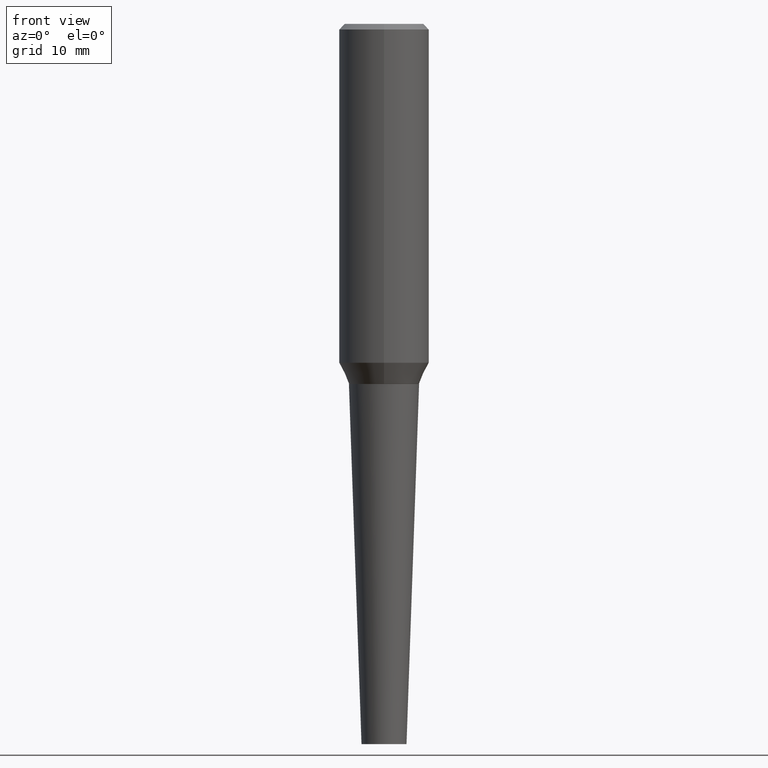
[diagram: clean part render]
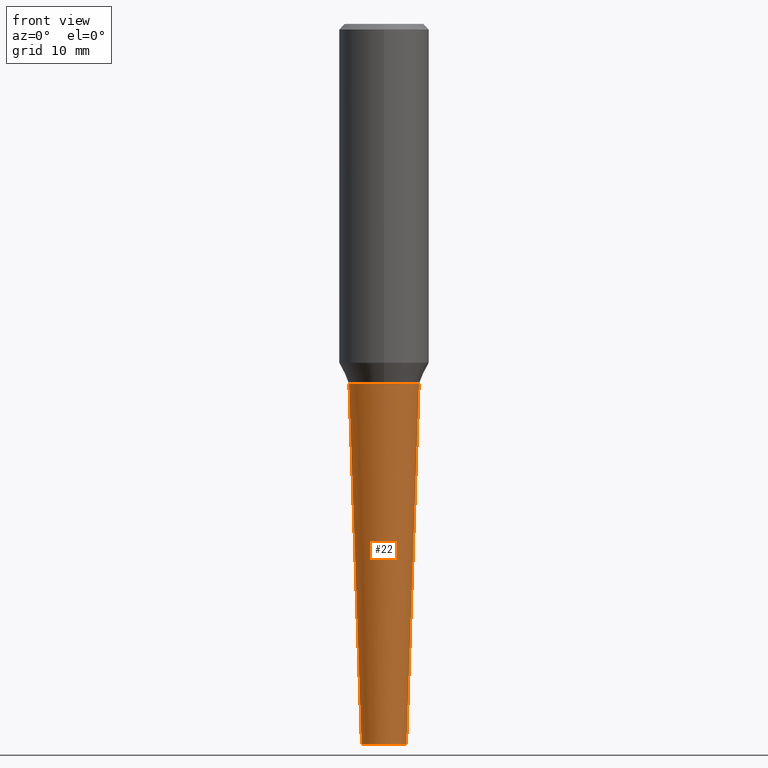
[diagram: same view with one face highlighted and labeled with its STEP entity id]
A machine part, front view. The second image highlights one B-rep face of the part: STEP entity #22.
In plain terms, the highlighted conical surface has half-angle 2 deg.
Its self-contained STEP definition (entity closure, byte-faithful):
#6 = CARTESIAN_POINT ( 'NONE',  ( 4.890937612370273194E-29, -6.982962677686291165E-15, -2.000000000000000000 ) ) ;
#15 = CONICAL_SURFACE ( 'NONE', #127, 0.1250000000000000555, 0.03490658503987938838 ) ;
#22 = ADVANCED_FACE ( 'NONE', ( #90 ), #15, .T. ) ;
#29 = LINE ( 'NONE', #102, #58 ) ;
#31 = ORIENTED_EDGE ( 'NONE', *, *, #271, .T. ) ;
#52 = VERTEX_POINT ( 'NONE', #339 ) ;
#58 = VECTOR ( 'NONE', #346, 39.37007874015748143 ) ;
#80 = DIRECTION ( 'NONE',  ( 1.000000000000000000, -6.982962677686275388E-15, 0.000000000000000000 ) ) ;
#90 = FACE_OUTER_BOUND ( 'NONE', #153, .T. ) ;
#91 = VERTEX_POINT ( 'NONE', #312 ) ;
#102 = CARTESIAN_POINT ( 'NONE',  ( -0.1250000000000000555, -1.307774693567245552E-14, -4.000000000000000000 ) ) ;
#103 = AXIS2_PLACEMENT_3D ( 'NONE', #6, #236, #278 ) ;
#110 = DIRECTION ( 'NONE',  ( -2.445468806185136597E-29, 3.491481338843145583E-15, 1.000000000000000000 ) ) ;
#119 = DIRECTION ( 'NONE',  ( -2.445468806185136597E-29, 3.491481338843145583E-15, 1.000000000000000000 ) ) ;
#127 = AXIS2_PLACEMENT_3D ( 'NONE', #407, #119, #80 ) ;
#138 = LINE ( 'NONE', #165, #214 ) ;
#153 = EDGE_LOOP ( 'NONE', ( #161, #31, #227, #366 ) ) ;
#161 = ORIENTED_EDGE ( 'NONE', *, *, #166, .F. ) ;
#165 = CARTESIAN_POINT ( 'NONE',  ( 0.1250000000000000555, -1.483879569008336725E-14, -4.000000000000000000 ) ) ;
#166 = EDGE_CURVE ( 'NONE', #52, #265, #29, .T. ) ;
#195 = CIRCLE ( 'NONE', #314, 0.1250000000000000555 ) ;
#214 = VECTOR ( 'NONE', #270, 39.37007874015748143 ) ;
#227 = ORIENTED_EDGE ( 'NONE', *, *, #335, .T. ) ;
#236 = DIRECTION ( 'NONE',  ( -2.445468806185136597E-29, 3.491481338843145583E-15, 1.000000000000000000 ) ) ;
#265 = VERTEX_POINT ( 'NONE', #267 ) ;
#267 = CARTESIAN_POINT ( 'NONE',  ( -0.1948415389834811107, -5.598530276195981594E-15, -2.000000000000000000 ) ) ;
#270 = DIRECTION ( 'NONE',  ( 0.03489949670249377356, 3.245652539804642670E-15, 0.9993908270190959842 ) ) ;
#271 = EDGE_CURVE ( 'NONE', #52, #373, #195, .T. ) ;
#278 = DIRECTION ( 'NONE',  ( 1.000000000000000000, -6.982962677686265922E-15, 0.000000000000000000 ) ) ;
#312 = CARTESIAN_POINT ( 'NONE',  ( 0.1948415389834811107, -8.343533872470893997E-15, -2.000000000000000000 ) ) ;
#314 = AXIS2_PLACEMENT_3D ( 'NONE', #388, #110, #332 ) ;
#326 = EDGE_CURVE ( 'NONE', #265, #91, #391, .T. ) ;
#332 = DIRECTION ( 'NONE',  ( 1.000000000000000000, -6.982962677686275388E-15, 0.000000000000000000 ) ) ;
#335 = EDGE_CURVE ( 'NONE', #373, #91, #138, .T. ) ;
#339 = CARTESIAN_POINT ( 'NONE',  ( -0.1250000000000000555, -9.338138605934218952E-15, -4.000000000000000000 ) ) ;
#346 = DIRECTION ( 'NONE',  ( -0.03489949670249377356, 3.737330261384597105E-15, 0.9993908270190959842 ) ) ;
#359 = CARTESIAN_POINT ( 'NONE',  ( 0.1250000000000000555, -1.483879569008336725E-14, -4.000000000000000000 ) ) ;
#366 = ORIENTED_EDGE ( 'NONE', *, *, #326, .F. ) ;
#373 = VERTEX_POINT ( 'NONE', #359 ) ;
#388 = CARTESIAN_POINT ( 'NONE',  ( 9.781875224740546387E-29, -1.396592535537258233E-14, -4.000000000000000000 ) ) ;
#391 = CIRCLE ( 'NONE', #103, 0.1948415389834811107 ) ;
#407 = CARTESIAN_POINT ( 'NONE',  ( 9.781875224740546387E-29, -1.396592535537258233E-14, -4.000000000000000000 ) ) ;